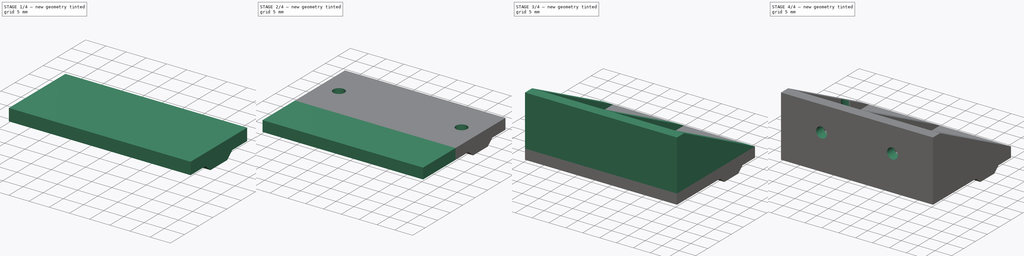
[diagram: build sequence overview — one tinted view per stage of 4, left to right]
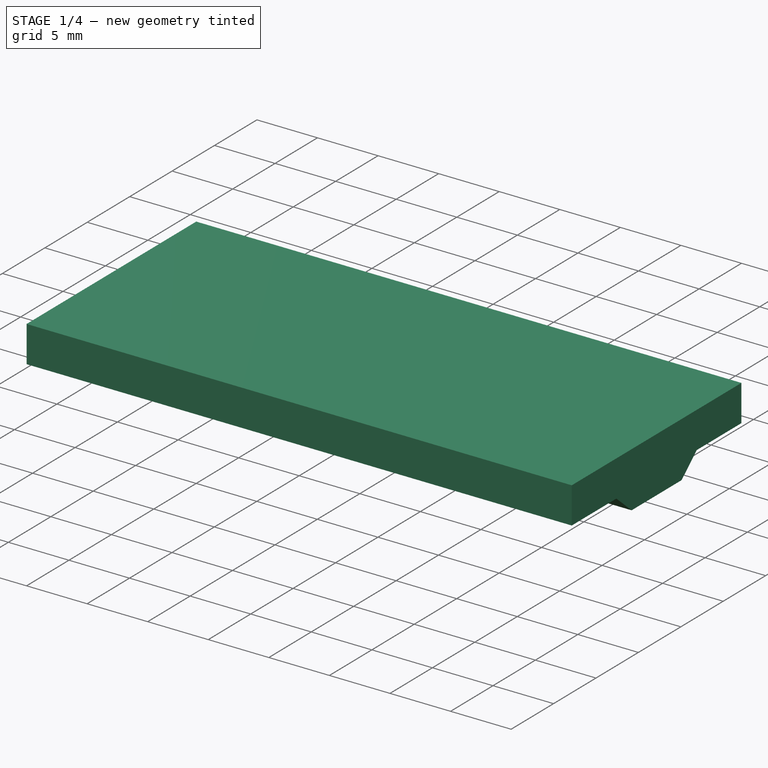
[diagram: stage 1 of 4 — iso view after this stage's code; geometry added in this stage tinted green]
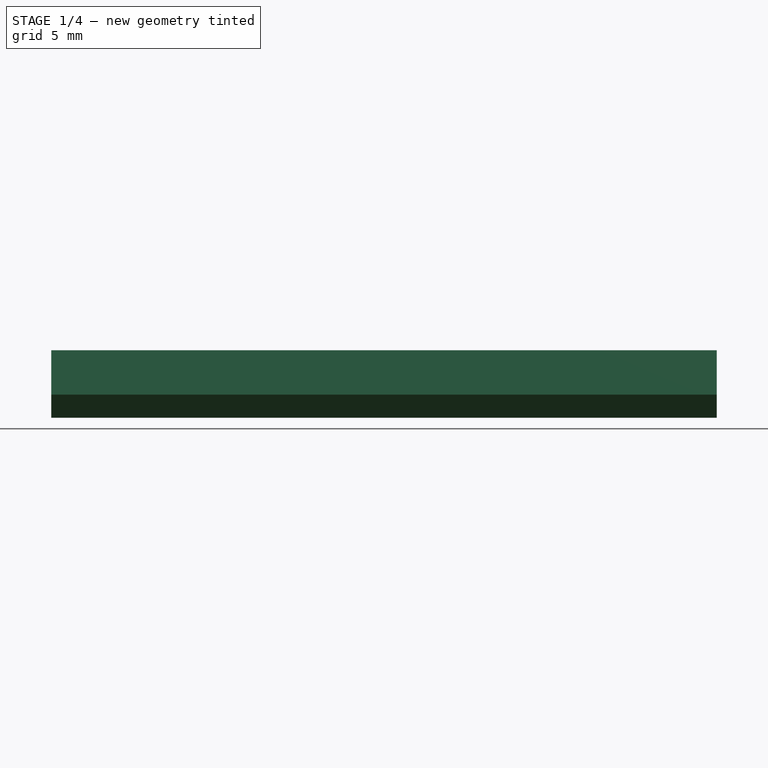
[diagram: stage 1 of 4 — front view after this stage's code; geometry added in this stage tinted green]
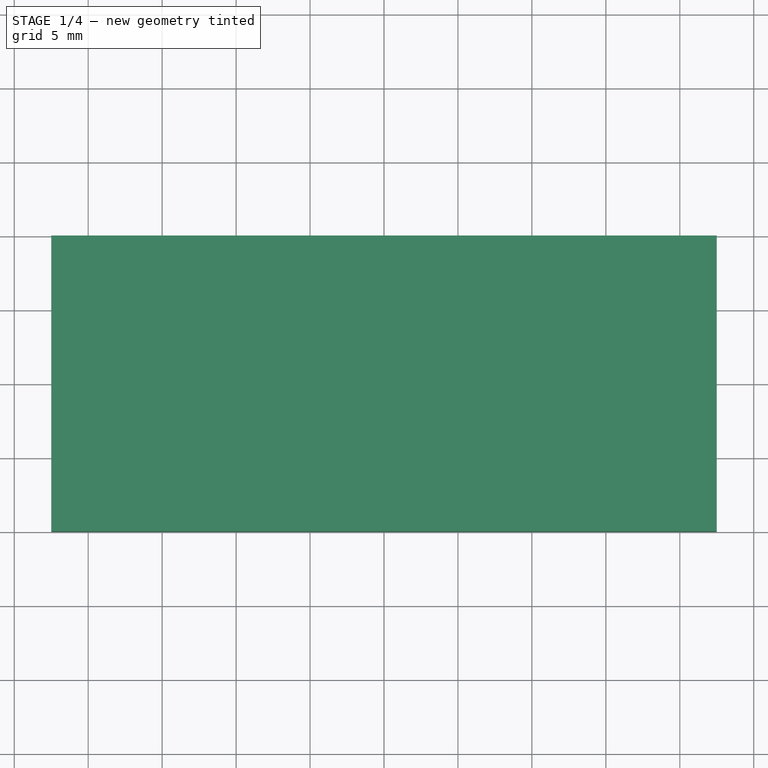
[diagram: stage 1 of 4 — top view after this stage's code; geometry added in this stage tinted green]
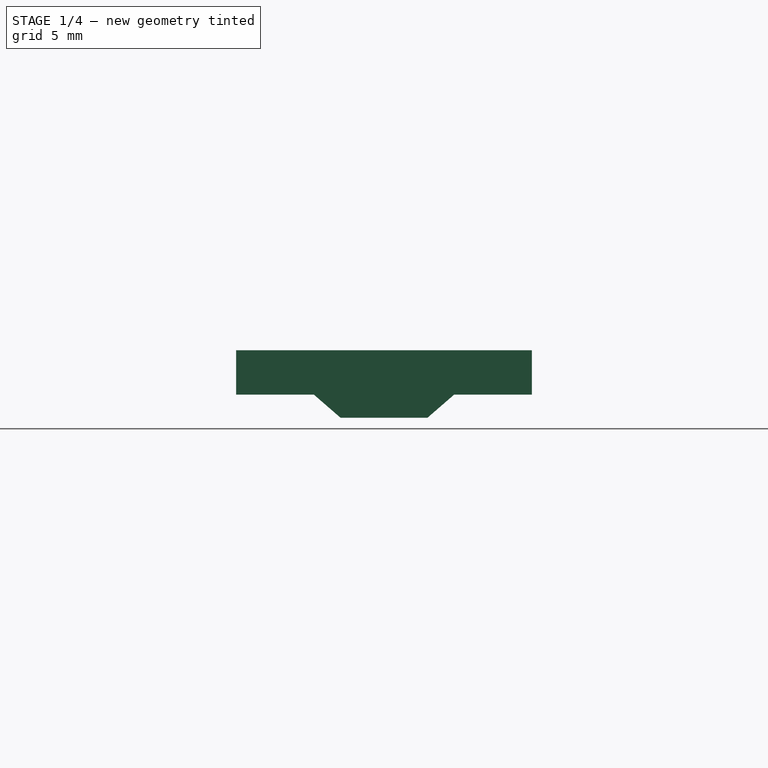
[diagram: stage 1 of 4 — right view after this stage's code; geometry added in this stage tinted green]
FCSTD DOCUMENT  (FreeCAD 0.21R33771 (Git))
Label: suporte-caixa-45-P2
License: All rights reserved
LicenseURL: http://en.wikipedia.org/wiki/All_rights_reserved
objects: Sketcher::SketchObject×10, PartDesign::Pocket×5, PartDesign::Pad×4, PartDesign::Body×1
note: 29 computed .brp shape members not serialized (recipe doc carries the construction recipe); baked Part::Feature solids carry a one-line shape summary decoded from their .brp

FEATURE [Sketcher::SketchObject] Sketch
  FullyConstrained = true
  MapMode = 5
  Support = -> [XY_Plane]
  sketch-geometry (6):
    g0: LineSegment StartX=-22.5 StartY=10 StartZ=0 EndX=22.5 EndY=10 EndZ=0
    g1: LineSegment StartX=22.5 StartY=10 StartZ=0 EndX=22.5 EndY=-10 EndZ=0
    g2: LineSegment StartX=22.5 StartY=-10 StartZ=0 EndX=-22.5 EndY=-10 EndZ=0
    g3: LineSegment StartX=-22.5 StartY=-10 StartZ=0 EndX=-22.5 EndY=10 EndZ=0
    g4: LineSegment StartX=22.5 StartY=10 StartZ=0 EndX=-22.5 EndY=-10 EndZ=0
    g5: LineSegment StartX=-22.5 StartY=10 StartZ=0 EndX=22.5 EndY=-10 EndZ=0
  constraints (16):
    c: Coincident(g0,g1)
    c: Coincident(g1,g2)
    c: Coincident(g2,g3)
    c: Coincident(g3,g0)
    c: Horizontal(g0)
    c: Horizontal(g2)
    c: Vertical(g1)
    c: Vertical(g3)
    c: Coincident(g4,g0)
    c: Coincident(g4,g2)
    c: Coincident(g5,g0)
    c: Coincident(g5,g1)
    c: PointOnObject(g-1,g4)
    c: PointOnObject(g-1,g5)
    c: DistanceX(g0,g0) = 45
    c: DistanceY(g3,g3) = 20
FEATURE [PartDesign::Pad] Pad
  Direction = (0,0,1)
  Length = 3
  Length2 = 10
  Profile = -> Sketch
  ReferenceAxis = -> Sketch [N_Axis]
  Type = 0
FEATURE [Sketcher::SketchObject] Sketch001
  FullyConstrained = true
  MapMode = 5
  Placement = pos=(22.5,0,0) rot=(0.57735,0.57735,0.57735;2.0944rad)
  Support = -> [Pad]
  sketch-geometry (5):
    g0: LineSegment StartX=0 StartY=0 StartZ=0 EndX=-4.74 EndY=0 EndZ=0
    g1: LineSegment StartX=-4.74 StartY=0 StartZ=0 EndX=-2.94 EndY=-1.56 EndZ=0
    g2: LineSegment StartX=-2.94 StartY=-1.56 StartZ=0 EndX=2.94 EndY=-1.56 EndZ=0
    g3: LineSegment StartX=2.94 StartY=-1.56 StartZ=0 EndX=4.74 EndY=0 EndZ=0
    g4: LineSegment StartX=4.74 StartY=0 StartZ=0 EndX=0 EndY=0 EndZ=0
  constraints (14):
    c: Coincident(g0,g1)
    c: Coincident(g1,g2)
    c: Coincident(g2,g3)
    c: Coincident(g3,g4)
    c: Coincident(g4,g0)
    c: Coincident(g4,g-1)
    c: Horizontal(g0)
    c: Horizontal(g4)
    c: Horizontal(g2)
    c: Equal(g1,g3)
    c: Equal(g0,g4)
    c: DistanceX(g2,g2) = 5.88
    c: DistanceX(g0,g3) = 9.48
    c: DistanceY(g1,g0) = 1.56
FEATURE [PartDesign::Pad] Pad001
  BaseFeature = -> Pad
  Direction = (1,0,0)
  Length = 10
  Length2 = 10
  Profile = -> Sketch001
  ReferenceAxis = -> Sketch001 [N_Axis]
  Reversed = true
  Type = 3
  UpToFace = -> Pad [Face4]
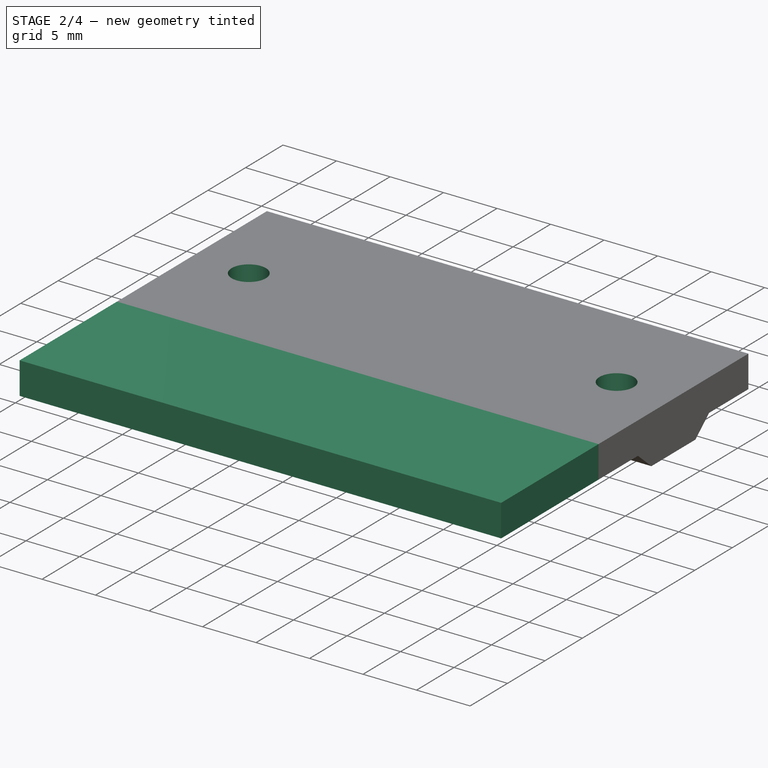
[diagram: stage 2 of 4 — iso view after this stage's code; geometry added in this stage tinted green]
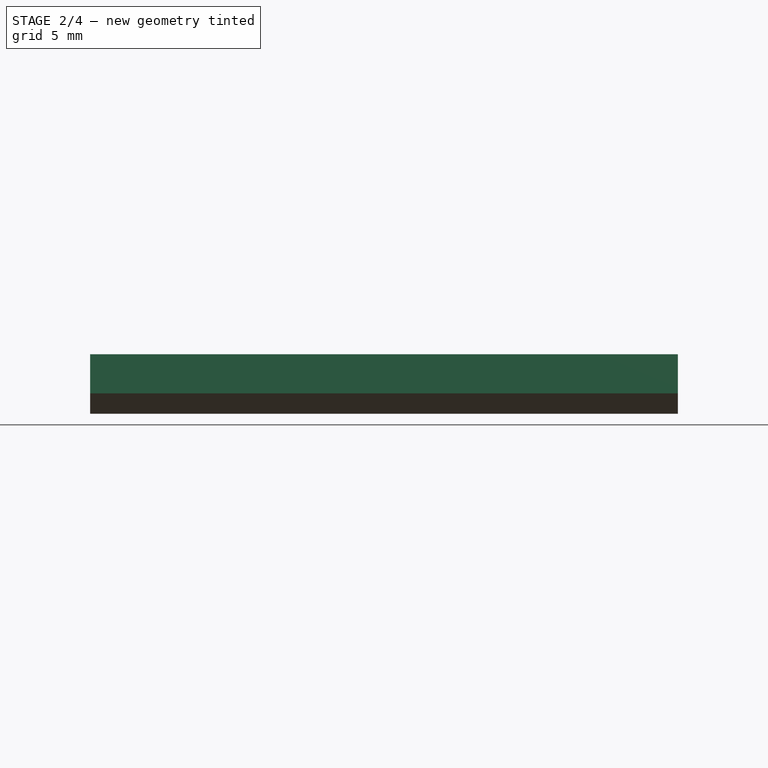
[diagram: stage 2 of 4 — front view after this stage's code; geometry added in this stage tinted green]
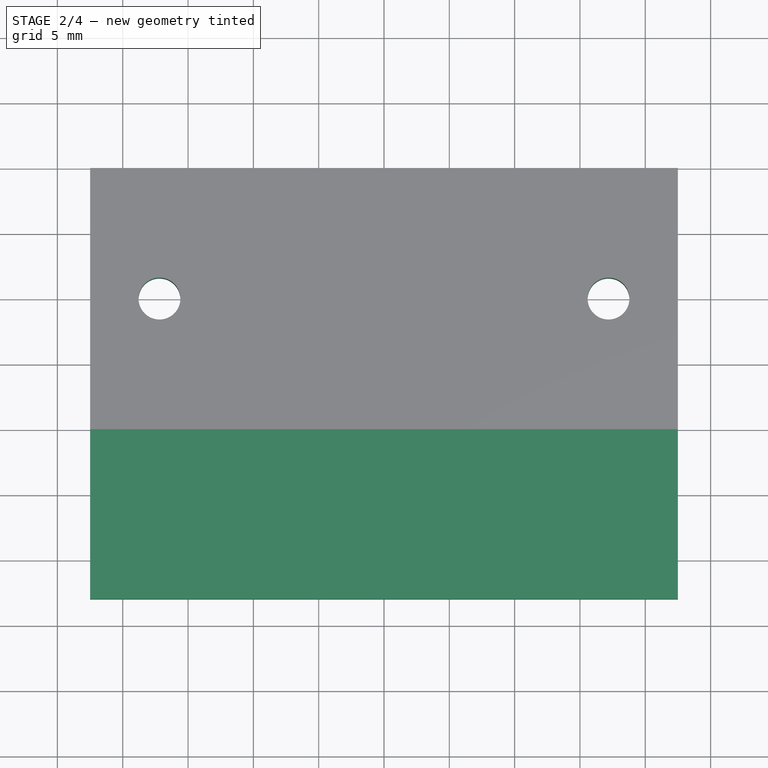
[diagram: stage 2 of 4 — top view after this stage's code; geometry added in this stage tinted green]
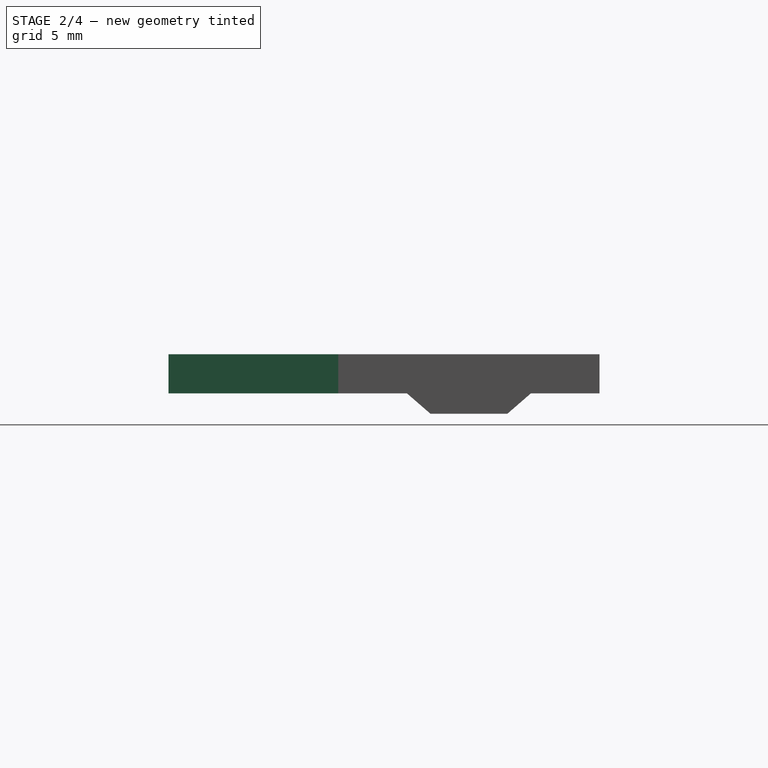
[diagram: stage 2 of 4 — right view after this stage's code; geometry added in this stage tinted green]
FEATURE [Sketcher::SketchObject] Sketch002
  FullyConstrained = true
  MapMode = 5
  Placement = pos=(0,0,3) rot=(0,0,1;0rad)
  Support = -> [Pad001]
  sketch-geometry (4):
    g0: LineSegment StartX=0 StartY=0 StartZ=0 EndX=-17.186 EndY=0 EndZ=0
    g1: LineSegment StartX=0 StartY=0 StartZ=0 EndX=17.186 EndY=0 EndZ=0
    g2: Circle CenterX=-17.186 CenterY=0 CenterZ=0 NormalX=0 NormalY=0 NormalZ=1 AngleXU=0 Radius=1.6
    g3: Circle CenterX=17.186 CenterY=0 CenterZ=0 NormalX=0 NormalY=0 NormalZ=1 AngleXU=0 Radius=1.6
  constraints (10):
    c: Coincident(g0,g-1)
    c: Coincident(g1,g0)
    c: Horizontal(g1)
    c: Horizontal(g0)
    c: Equal(g0,g1)
    c: Coincident(g2,g0)
    c: Coincident(g3,g1)
    c: Equal(g2,g3)
    c: Radius(g2) = 1.6
    c: DistanceX(g2,g3) = 34.372
FEATURE [PartDesign::Pocket] Pocket
  BaseFeature = -> Pad001
  Direction = (0,0,-1)
  Length = 5
  Length2 = 5
  Profile = -> Sketch002
  ReferenceAxis = -> Sketch002 [N_Axis]
  Type = 1
FEATURE [PartDesign::Pad] Pad002
  BaseFeature = -> Pocket
  Direction = (0,-1,0)
  Length = 13
  Length2 = 10
  Profile = -> Pocket [Face6]
  Type = 0
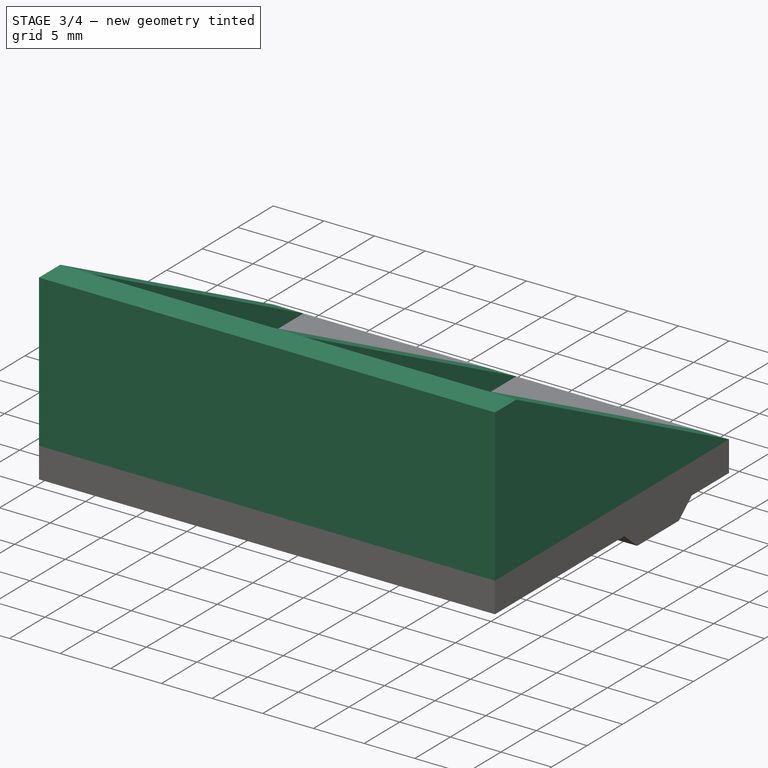
[diagram: stage 3 of 4 — iso view after this stage's code; geometry added in this stage tinted green]
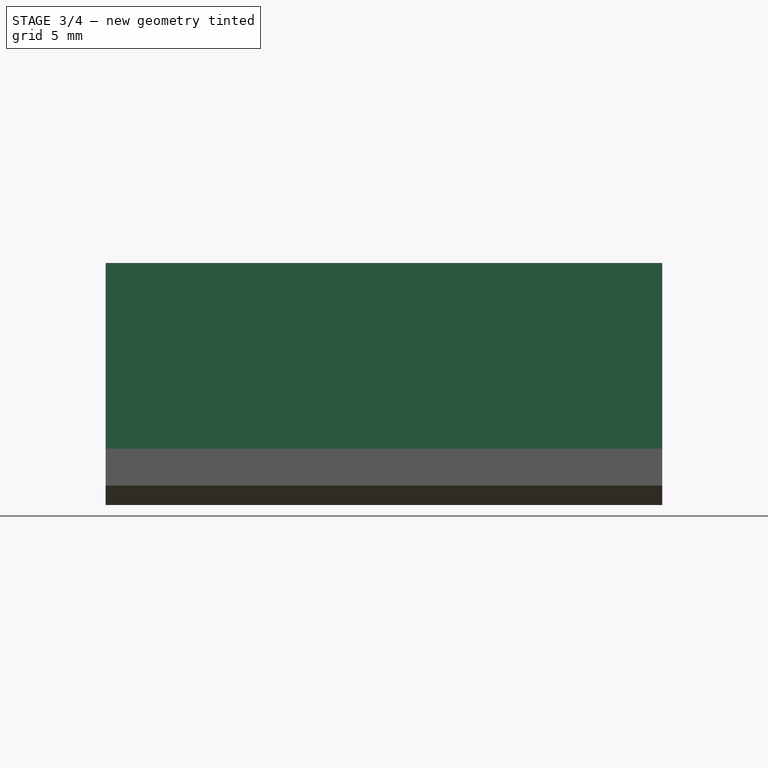
[diagram: stage 3 of 4 — front view after this stage's code; geometry added in this stage tinted green]
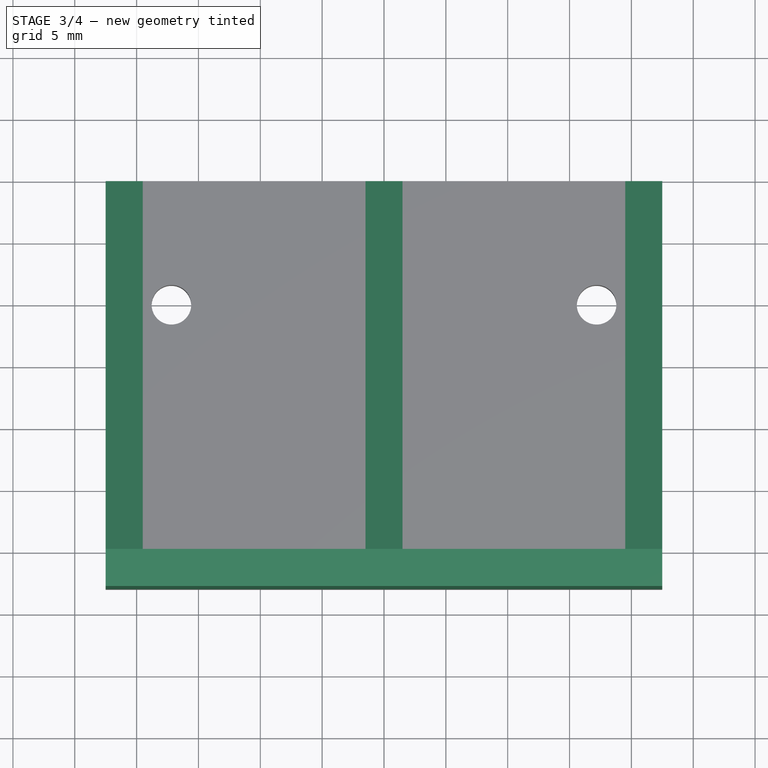
[diagram: stage 3 of 4 — top view after this stage's code; geometry added in this stage tinted green]
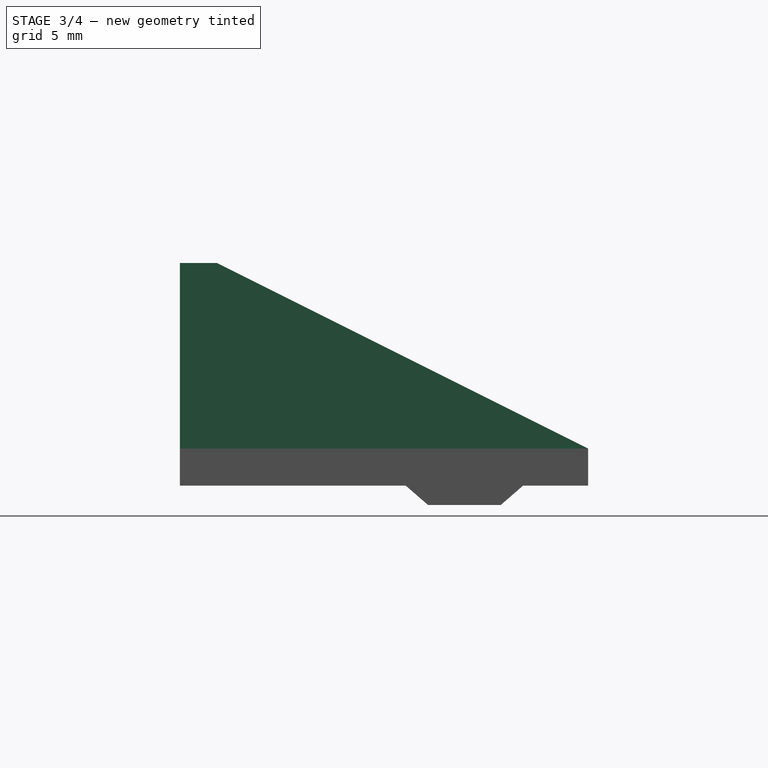
[diagram: stage 3 of 4 — right view after this stage's code; geometry added in this stage tinted green]
FEATURE [PartDesign::Pad] Pad003
  BaseFeature = -> Pad002
  Direction = (0,0,1)
  Length = 15
  Length2 = 10
  Profile = -> Pad002 [Face5,Face12]
  Type = 0
FEATURE [Sketcher::SketchObject] Sketch004
  ExternalGeometry = -> [Pad003]
  FullyConstrained = true
  MapMode = 5
  Placement = pos=(22.5,0,0) rot=(0.57735,0.57735,0.57735;2.0944rad)
  Support = -> [Pad003]
  sketch-geometry (3):
    g0: LineSegment StartX=10 StartY=3 StartZ=0 EndX=-20 EndY=18 EndZ=0
    g1: LineSegment StartX=-20 StartY=18 StartZ=0 EndX=10 EndY=18 EndZ=0
    g2: LineSegment StartX=10 StartY=3 StartZ=0 EndX=10 EndY=18 EndZ=0
  constraints (7):
    c: Coincident(g0,g2)
    c: Coincident(g2,g1)
    c: Coincident(g1,g0)
    c: Coincident(g1,g-4)
    c: Coincident(g-4,g0)
    c: PointOnObject(g0,g-5)
    c: DistanceX(g-5,g0) = 3
FEATURE [PartDesign::Pocket] Pocket001
  BaseFeature = -> Pad003
  Direction = (-1,0,0)
  Length = 5
  Length2 = 5
  Profile = -> Sketch004
  ReferenceAxis = -> Sketch004 [N_Axis]
  Type = 1
FEATURE [Sketcher::SketchObject] Sketch005
  ExternalGeometry = -> [Pocket001]
  FullyConstrained = true
  MapMode = 5
  Placement = pos=(0,0,18) rot=(0,0,1;0rad)
  Support = -> [Pocket001]
  sketch-geometry (8):
    g0: LineSegment StartX=19.5 StartY=-20 StartZ=0 EndX=1.5 EndY=-20 EndZ=0
    g1: LineSegment StartX=1.5 StartY=-20 StartZ=0 EndX=1.5 EndY=10 EndZ=0
    g2: LineSegment StartX=1.5 StartY=10 StartZ=0 EndX=19.5 EndY=10 EndZ=0
    g3: LineSegment StartX=19.5 StartY=10 StartZ=0 EndX=19.5 EndY=-20 EndZ=0
    g4: LineSegment StartX=-1.5 StartY=-20 StartZ=0 EndX=-19.5 EndY=-20 EndZ=0
    g5: LineSegment StartX=-19.5 StartY=-20 StartZ=0 EndX=-19.5 EndY=10 EndZ=0
    g6: LineSegment StartX=-19.5 StartY=10 StartZ=0 EndX=-1.5 EndY=10 EndZ=0
    g7: LineSegment StartX=-1.5 StartY=10 StartZ=0 EndX=-1.5 EndY=-20 EndZ=0
  constraints (24):
    c: Coincident(g0,g1)
    c: Coincident(g1,g2)
    c: Coincident(g2,g3)
    c: Coincident(g3,g0)
    c: Horizontal(g0)
    c: Horizontal(g2)
    c: Vertical(g1)
    c: Vertical(g3)
    c: Coincident(g4,g5)
    c: Coincident(g5,g6)
    c: Coincident(g6,g7)
    c: Coincident(g7,g4)
    c: Horizontal(g4)
    c: Horizontal(g6)
    c: Vertical(g5)
    c: Vertical(g7)
    c: PointOnObject(g4,g-3)
    c: PointOnObject(g0,g-3)
    c: DistanceX(g4,g0) = 3
    c: DistanceX(g-3,g4) = 3
    c: DistanceX(g0,g-3) = 3
    c: PointOnObject(g5,g-4)
    c: PointOnObject(g1,g-4)
    c: Equal(g4,g0)
FEATURE [PartDesign::Pocket] Pocket002
  BaseFeature = -> Pocket001
  Direction = (0,0,-1)
  Length = 15
  Length2 = 5
  Profile = -> Sketch005
  ReferenceAxis = -> Sketch005 [N_Axis]
  Type = 0
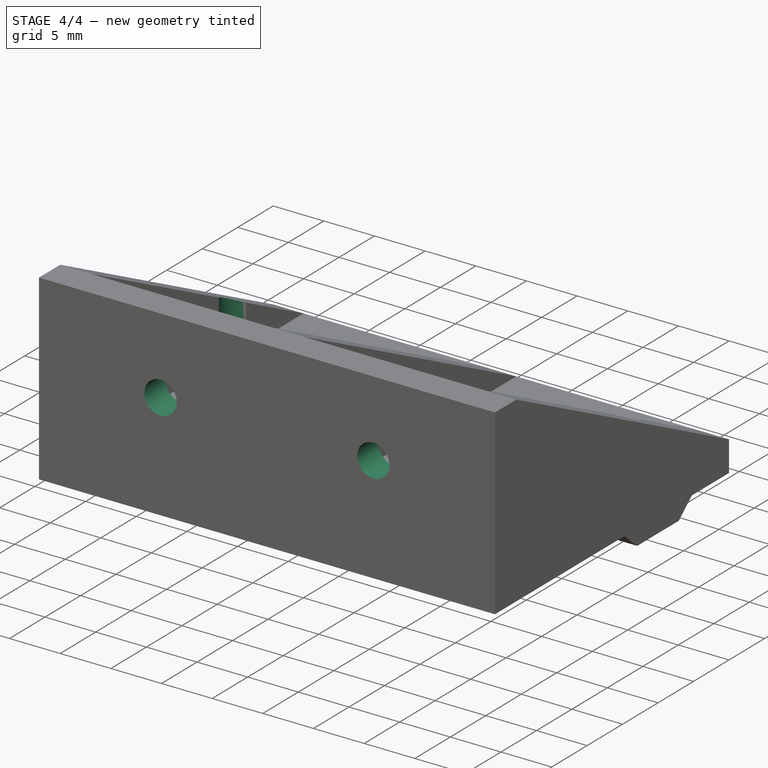
[diagram: stage 4 of 4 — iso view after this stage's code; geometry added in this stage tinted green]
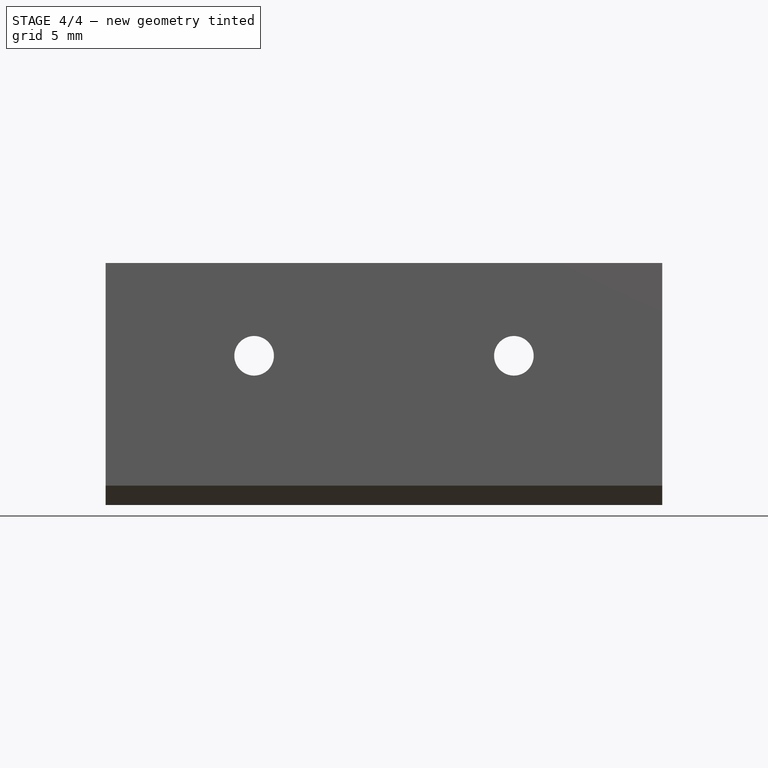
[diagram: stage 4 of 4 — front view after this stage's code; geometry added in this stage tinted green]
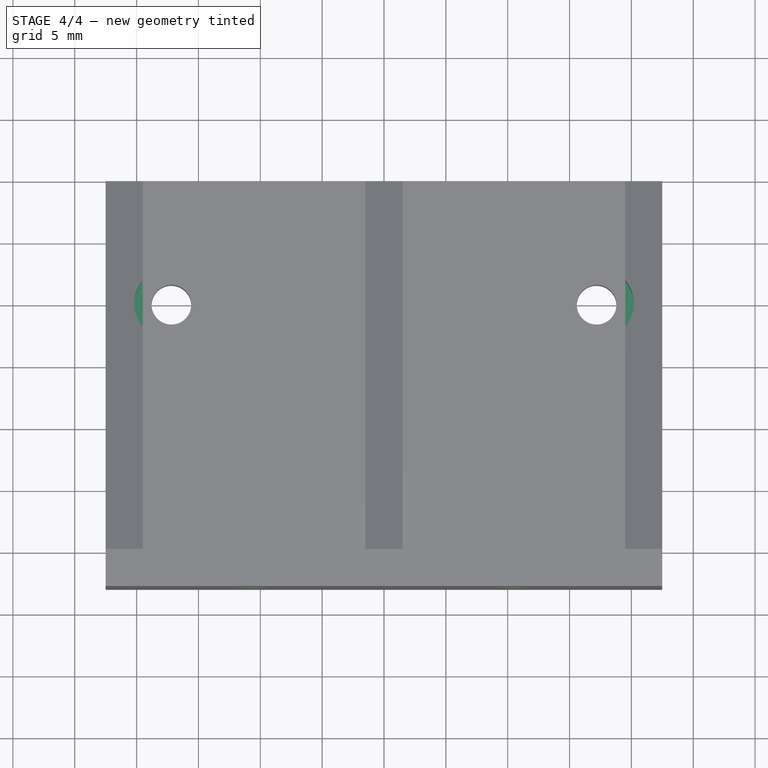
[diagram: stage 4 of 4 — top view after this stage's code; geometry added in this stage tinted green]
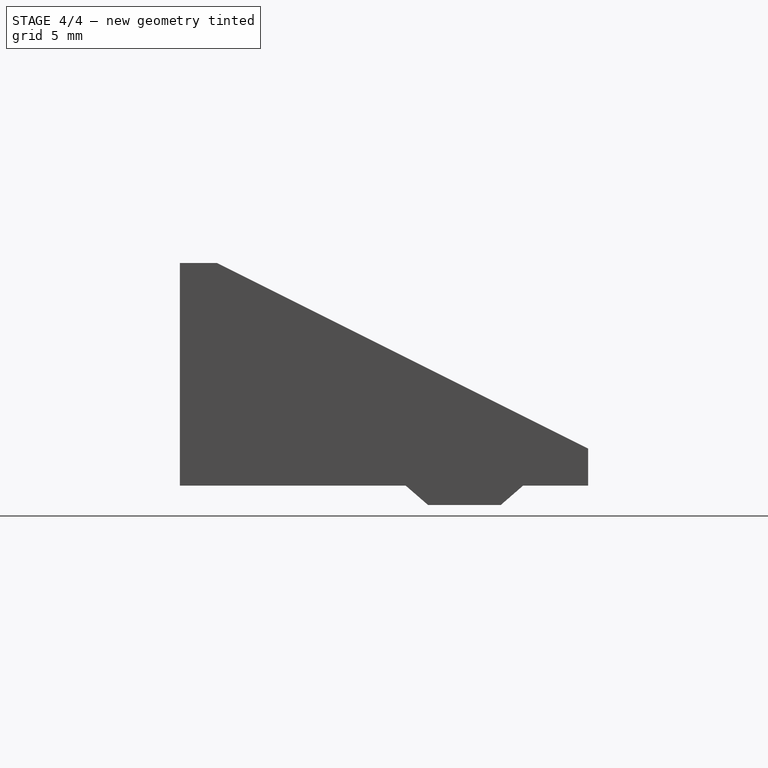
[diagram: stage 4 of 4 — right view after this stage's code; geometry added in this stage tinted green]
FEATURE [Sketcher::SketchObject] Sketch006
  ExternalGeometry = -> [Pocket002]
  FullyConstrained = true
  MapMode = 5
  Placement = pos=(0,0,3) rot=(0,0,1;0rad)
  Support = -> [Pocket002]
  sketch-geometry (2):
    g0: Circle CenterX=17.186 CenterY=0 CenterZ=0 NormalX=0 NormalY=0 NormalZ=1 AngleXU=0 Radius=3
    g1: Circle CenterX=-17.186 CenterY=0 CenterZ=0 NormalX=0 NormalY=0 NormalZ=1 AngleXU=0 Radius=3
  constraints (4):
    c: Coincident(g1,g-3)
    c: Coincident(g0,g-4)
    c: Equal(g0,g1)
    c: Radius(g1) = 3
FEATURE [PartDesign::Pocket] Pocket003
  BaseFeature = -> Pocket002
  Direction = (0,0,-1)
  Length = 5
  Length2 = 5
  Profile = -> Sketch006
  ReferenceAxis = -> Sketch006 [N_Axis]
  Reversed = true
  Type = 1
FEATURE [Sketcher::SketchObject] Sketch007
  ExternalGeometry = -> [Pocket003]
  FullyConstrained = true
  MapMode = 5
  Placement = pos=(0,-20,0) rot=(0,0.707107,0.707107;3.14159rad)
  Support = -> [Pocket003]
  sketch-geometry (6):
    g0: LineSegment StartX=-1.5 StartY=18 StartZ=0 EndX=-19.5 EndY=3 EndZ=0
    g1: LineSegment StartX=-19.5 StartY=18 StartZ=0 EndX=-1.5 EndY=3 EndZ=0
    g2: LineSegment StartX=1.5 StartY=3 StartZ=0 EndX=19.5 EndY=18 EndZ=0
    g3: LineSegment StartX=1.5 StartY=18 StartZ=0 EndX=19.5 EndY=3 EndZ=0
    g4: Circle CenterX=-10.5 CenterY=10.5 CenterZ=0 NormalX=0 NormalY=0 NormalZ=1 AngleXU=0 Radius=1.6
    g5: Circle CenterX=10.5 CenterY=10.5 CenterZ=0 NormalX=0 NormalY=0 NormalZ=1 AngleXU=0 Radius=1.6
  constraints (14):
    c: Coincident(g0,g-6)
    c: Coincident(g0,g-3)
    c: Coincident(g1,g-6)
    c: Coincident(g1,g-3)
    c: Coincident(g2,g-4)
    c: Coincident(g2,g-5)
    c: Coincident(g3,g-5)
    c: Coincident(g3,g-4)
    c: PointOnObject(g5,g3)
    c: PointOnObject(g5,g2)
    c: PointOnObject(g4,g0)
    c: PointOnObject(g4,g1)
    c: Equal(g4,g5)
    c: Radius(g4) = 1.6
FEATURE [PartDesign::Pocket] Pocket004
  BaseFeature = -> Pocket003
  Direction = (0,-1,2e-16)
  Length = 5
  Length2 = 5
  Profile = -> Sketch007
  ReferenceAxis = -> Sketch007 [N_Axis]
  Type = 1
FEATURE [Sketcher::SketchObject] Sketch008
  ExternalGeometry = -> [Pocket004]
  FullyConstrained = true
  MapMode = 5
  Placement = pos=(0,-23,0) rot=(1,0,0;1.5708rad)
  Support = -> [Pocket004]
  constraints (1):
    c: DistanceX(g-4,g-3) = 21
FEATURE [Sketcher::SketchObject] Sketch009
  ExternalGeometry = -> [Pocket004]
  FullyConstrained = true
  MapMode = 5
  Placement = pos=(0,0,0) rot=(1,0,0;3.14159rad)
  Support = -> [Pocket004]
  constraints (2):
    c: DistanceY(g-4,g-3) = 20
    c: DistanceY(g-3,g-5) = 13
FEATURE [Sketcher::SketchObject] Sketch010
  ExternalGeometry = -> [Pocket004]
  FullyConstrained = true
  MapMode = 5
  Placement = pos=(0,-23,0) rot=(1,0,0;1.5708rad)
  Support = -> [Pocket004]
  constraints (6):
    c: DistanceY(g-1,g-3) = 18
    c: DistanceY(g-1,g-6) = 10.5
    c: DistanceY(g-5,g-3) = 7.5
    c: DistanceY(g-4,g-6) = 7.5
    c: DistanceX(g-3,g-3) = 45
    c: DistanceX(g-5,g-6) = 21
FEATURE [PartDesign::Body] Body
  Group = -> [Sketch,Pad,Sketch001,Pad001,Sketch002,Pocket,Pad002,Pad003,Sketch004,Pocket001,Sketch005,Pocket002,Sketch006,Pocket003,Sketch007,Pocket004,Sketch008,Sketch009,Sketch010]
  Origin = -> Origin
  Tip = -> Pocket004
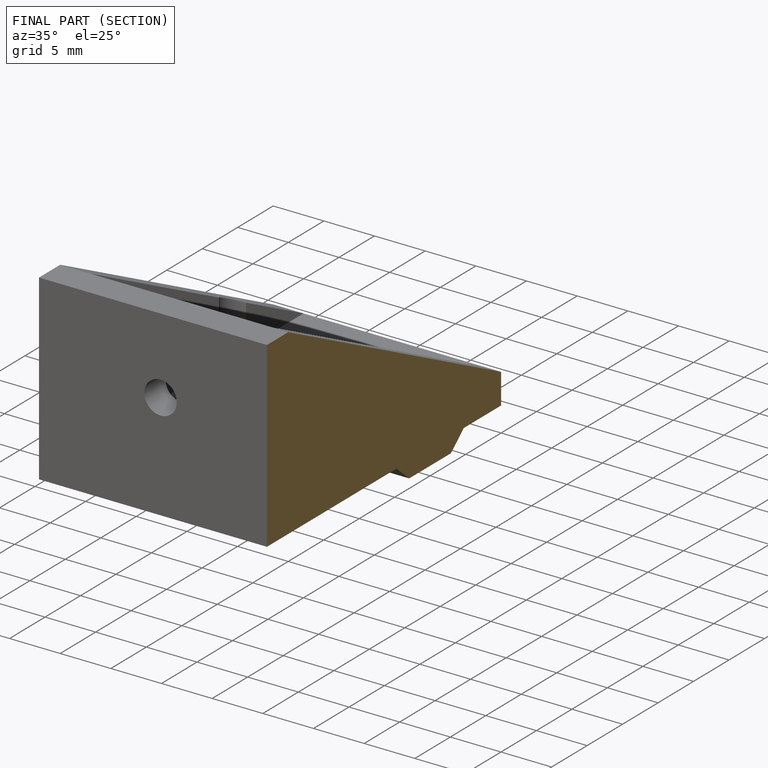
[diagram: finished part — half-section view (interior)]
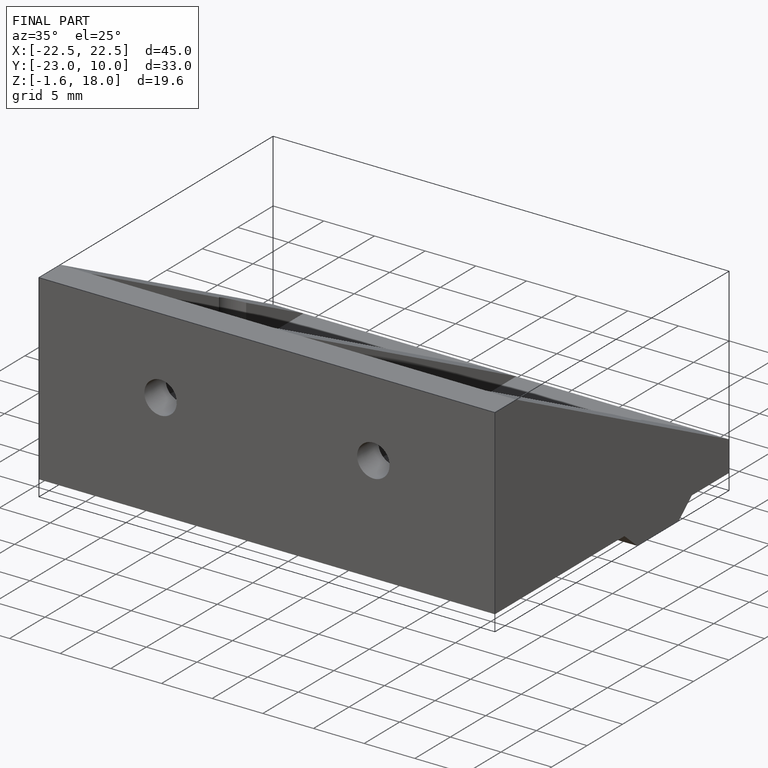
[diagram: finished part — iso view with bounding-box wireframe]
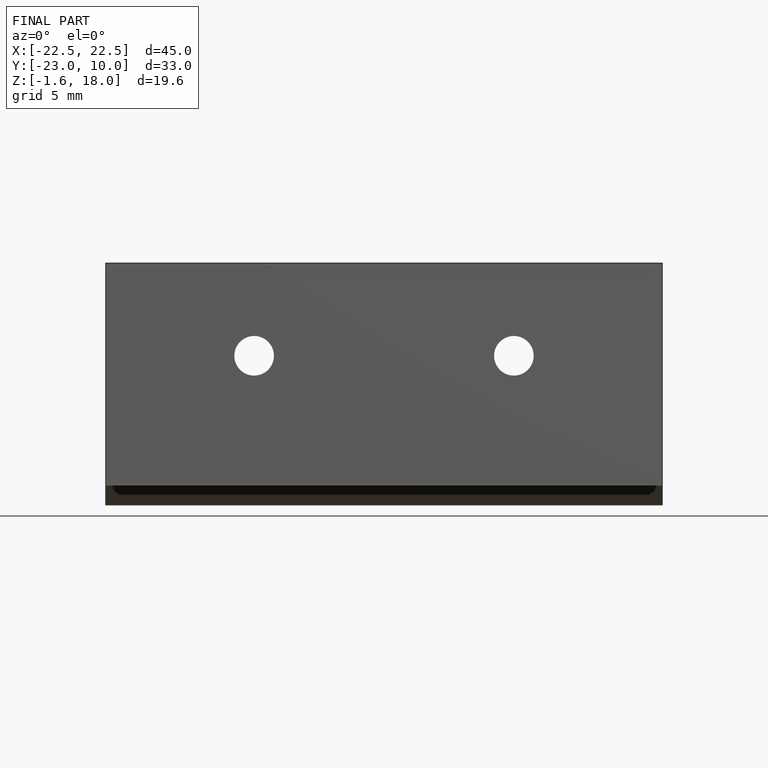
[diagram: finished part — front view with bounding-box wireframe]
